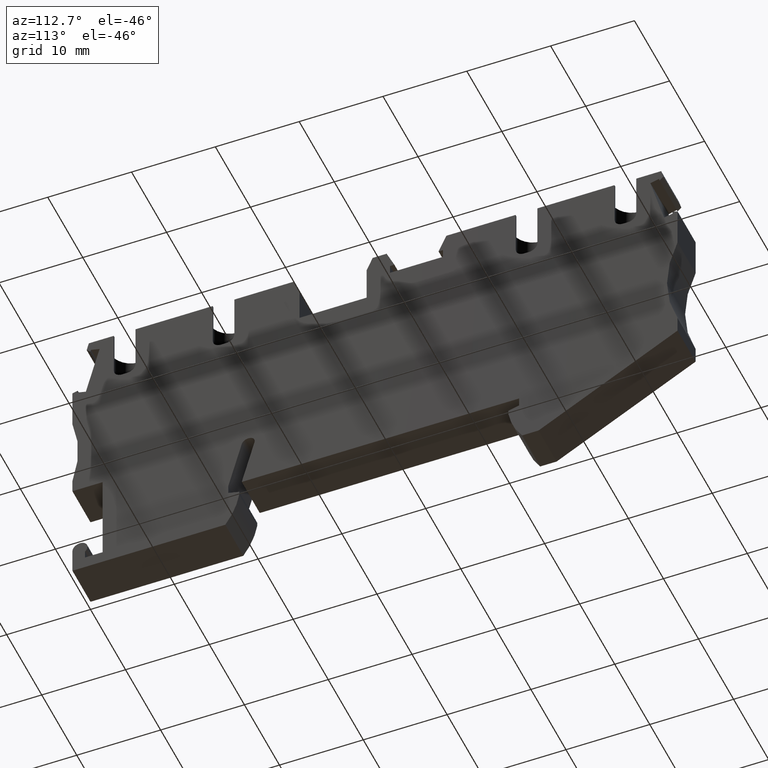
[diagram: clean part render]
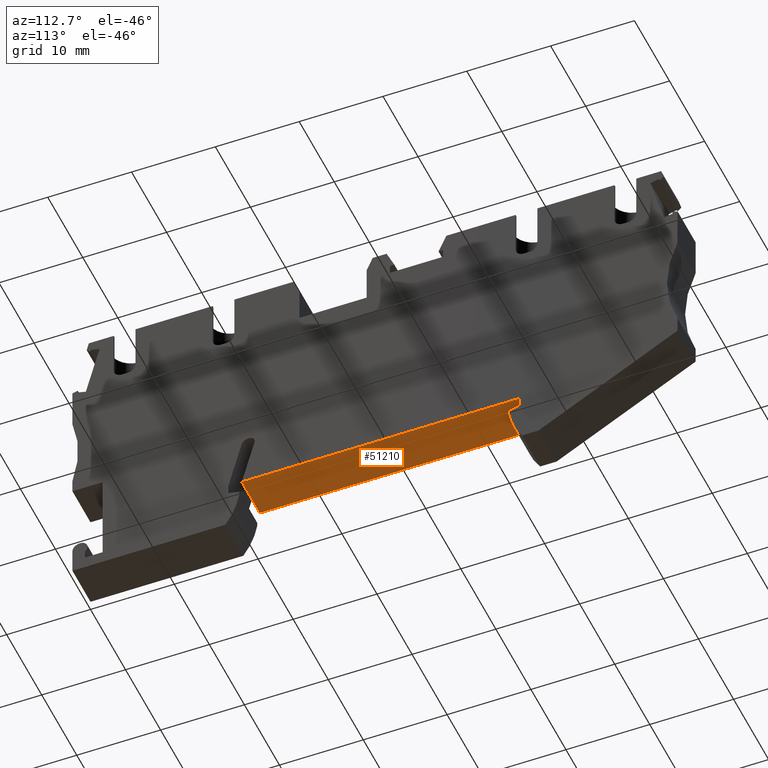
[diagram: same view with one face highlighted and labeled with its STEP entity id]
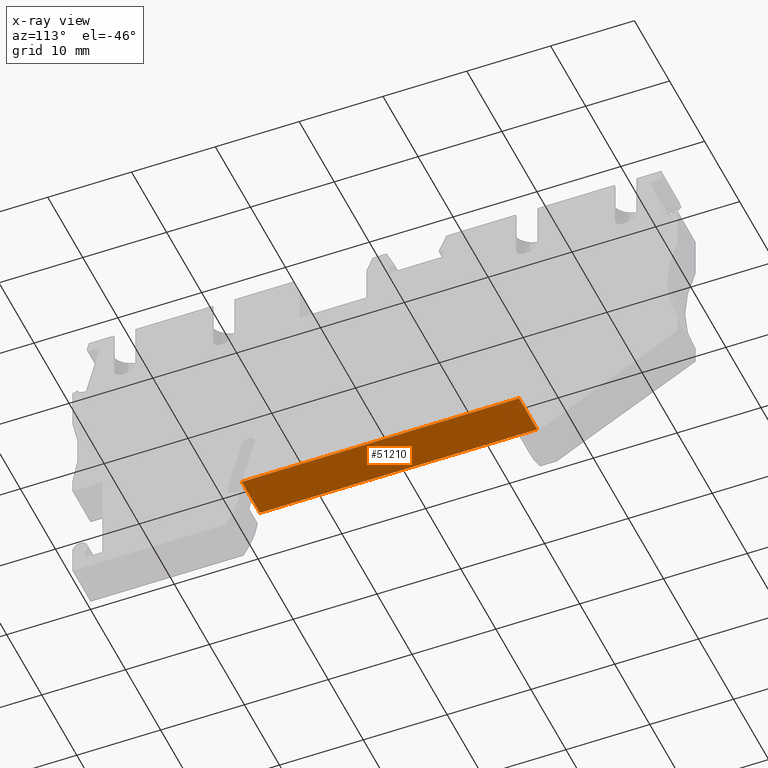
[diagram: x-ray of the same camera — body ghosted, the highlighted face saturated]
A machine part, auxiliary view. The second image highlights one B-rep face of the part: STEP entity #51210.
The next image is the same camera in x-ray: the body ghosted, the highlighted face saturated — about 0% of this face is hidden behind the body in this view.
In plain terms, the highlighted planar face has unit normal (0, -0, -1).
Its self-contained STEP definition (entity closure, byte-faithful):
#1040=CARTESIAN_POINT('',(20.1680133300547,2.30722044942663,
-5.15000000000554));
#1050=VERTEX_POINT('',#1040);
#1080=CARTESIAN_POINT('',(1.75765734278252E-14,-0.169100211588062,
-5.14999999999718));
#1090=DIRECTION('',(-0.992546151641323,-0.121869343405148,
4.13556346824791E-17));
#1100=VECTOR('',#1090,1.);
#1110=LINE('',#1080,#1100);
#1120=CARTESIAN_POINT('',(53.0212909493827,6.34109571613704,
-5.15000000000984));
#1130=VERTEX_POINT('',#1120);
#1140=EDGE_CURVE('',#1130,#1050,#1110,.T.);
#49550=CARTESIAN_POINT('',(53.0212909493826,6.34109571613769,
2.83093969584943E-12));
#49560=DIRECTION('',(1.5334350813322E-14,-1.25227609306364E-13,-1.));
#49570=VECTOR('',#49560,1.);
#49580=LINE('',#49550,#49570);
#49590=CARTESIAN_POINT('',(53.0212909493826,6.34109571613769,
-9.8436789833837E-12));
#49600=VERTEX_POINT('',#49590);
#49610=EDGE_CURVE('',#49600,#1130,#49580,.T.);
#50790=CARTESIAN_POINT('',(20.1680133300546,2.30722044942727,
2.84651942207263E-12));
#50800=DIRECTION('',(-1.5334350813322E-14,1.25227609306364E-13,1.));
#50810=VECTOR('',#50800,1.);
#50820=LINE('',#50790,#50810);
#50830=CARTESIAN_POINT('',(20.1680133300546,2.30722044942727,
-5.54198257665483E-12));
#50840=VERTEX_POINT('',#50830);
#50850=EDGE_CURVE('',#1050,#50840,#50820,.T.);
#51050=CARTESIAN_POINT('',(20.814768994323,2.38663205967593,
2.83228161950121E-12));
#51060=DIRECTION('',(0.121869343405147,-0.992546151641322,
1.26162968961438E-13));
#51070=DIRECTION('',(-0.992546151641323,-0.121869343405148,
4.13556346824791E-17));
#51080=AXIS2_PLACEMENT_3D('',#51050,#51060,#51070);
#51090=PLANE('',#51080);
#51100=CARTESIAN_POINT('',(-6.13953332607829E-14,-0.169100211587417,
2.81916008189116E-12));
#51110=DIRECTION('',(-0.992546151641323,-0.121869343405148,
4.13556346824791E-17));
#51120=VECTOR('',#51110,1.);
#51130=LINE('',#51100,#51120);
#51140=EDGE_CURVE('',#49600,#50840,#51130,.T.);
#51150=ORIENTED_EDGE('',*,*,#51140,.T.);
#51160=ORIENTED_EDGE('',*,*,#49610,.F.);
#51170=ORIENTED_EDGE('',*,*,#1140,.F.);
#51180=ORIENTED_EDGE('',*,*,#50850,.F.);
#51190=EDGE_LOOP('',(#51180,#51170,#51160,#51150));
#51200=FACE_OUTER_BOUND('',#51190,.T.);
#51210=ADVANCED_FACE('',(#51200),#51090,.T.);